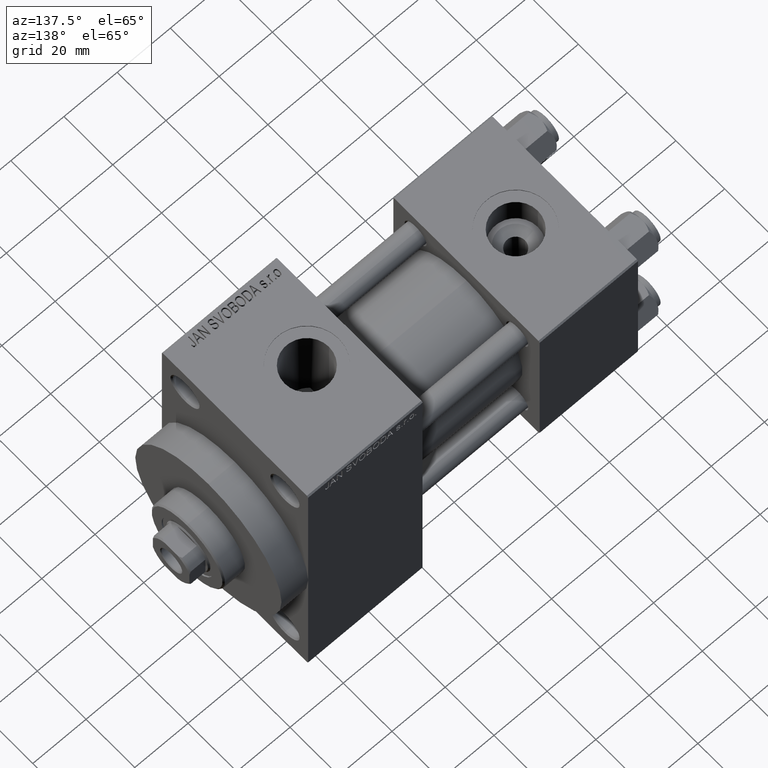
[diagram: clean part render]
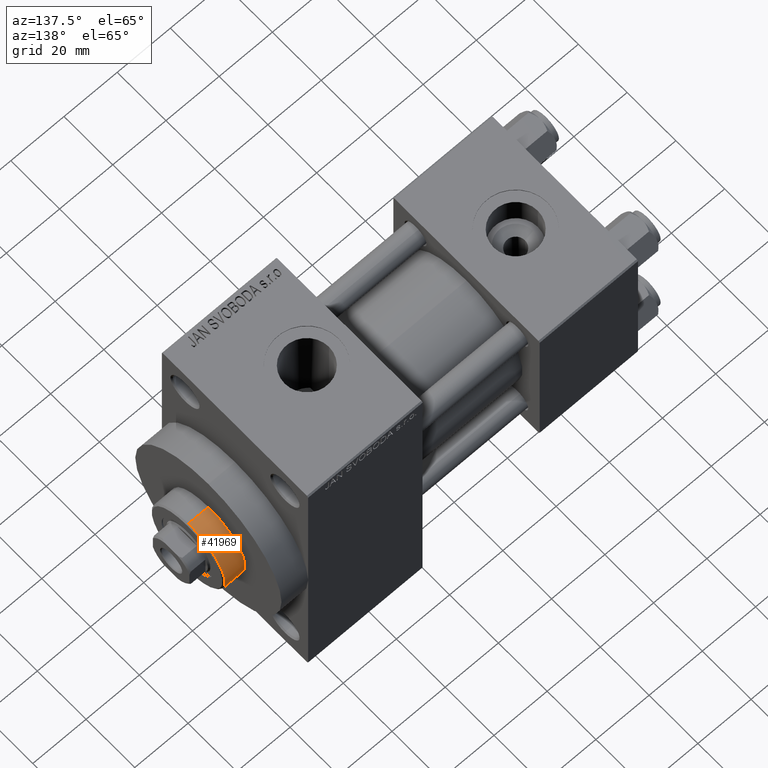
[diagram: same view with one face highlighted and labeled with its STEP entity id]
A machine part, auxiliary view. The second image highlights one B-rep face of the part: STEP entity #41969.
In plain terms, the highlighted cylindrical surface (partial cylindrical patch) has radius 15 mm, axis along (-1, 0, 0).
Its self-contained STEP definition (entity closure, byte-faithful):
#795 = CARTESIAN_POINT ( 'NONE',  ( -15.00000000000000000, 0.000000000000000000, 43.25999999999999801 ) ) ;
#3387 = CARTESIAN_POINT ( 'NONE',  ( 0.000000000000000000, 0.000000000000000000, 43.25999999999999801 ) ) ;
#3852 = DIRECTION ( 'NONE',  ( -0.000000000000000000, -0.000000000000000000, -1.000000000000000000 ) ) ;
#4180 = EDGE_CURVE ( 'NONE', #12778, #32087, #40404, .T. ) ;
#4745 = DIRECTION ( 'NONE',  ( -0.000000000000000000, -0.000000000000000000, -1.000000000000000000 ) ) ;
#8258 = CARTESIAN_POINT ( 'NONE',  ( 15.00000000000000000, 1.836970198721029589E-15, 43.25999999999999801 ) ) ;
#9777 = CARTESIAN_POINT ( 'NONE',  ( -15.00000000000000000, 0.000000000000000000, 50.75999999999998380 ) ) ;
#11254 = CARTESIAN_POINT ( 'NONE',  ( 0.000000000000000000, 0.000000000000000000, 51.25999999999999801 ) ) ;
#11920 = LINE ( 'NONE', #42022, #31693 ) ;
#12778 = VERTEX_POINT ( 'NONE', #9777 ) ;
#13946 = DIRECTION ( 'NONE',  ( 0.000000000000000000, 0.000000000000000000, -1.000000000000000000 ) ) ;
#15612 = AXIS2_PLACEMENT_3D ( 'NONE', #11254, #3852, #18894 ) ;
#16635 = CIRCLE ( 'NONE', #24279, 15.00000000000000000 ) ;
#18894 = DIRECTION ( 'NONE',  ( -1.000000000000000000, 0.000000000000000000, 0.000000000000000000 ) ) ;
#20674 = EDGE_CURVE ( 'NONE', #32087, #27983, #39419, .T. ) ;
#21029 = ORIENTED_EDGE ( 'NONE', *, *, #23640, .T. ) ;
#21379 = DIRECTION ( 'NONE',  ( 1.000000000000000000, 0.000000000000000000, 0.000000000000000000 ) ) ;
#23640 = EDGE_CURVE ( 'NONE', #34494, #12778, #16635, .T. ) ;
#24279 = AXIS2_PLACEMENT_3D ( 'NONE', #46676, #13946, #21379 ) ;
#27983 = VERTEX_POINT ( 'NONE', #8258 ) ;
#30337 = CARTESIAN_POINT ( 'NONE',  ( -15.00000000000000000, 0.000000000000000000, 51.25999999999999801 ) ) ;
#31693 = VECTOR ( 'NONE', #4745, 1000.000000000000000 ) ;
#32087 = VERTEX_POINT ( 'NONE', #795 ) ;
#32900 = ORIENTED_EDGE ( 'NONE', *, *, #20674, .T. ) ;
#33187 = ORIENTED_EDGE ( 'NONE', *, *, #43093, .F. ) ;
#33297 = AXIS2_PLACEMENT_3D ( 'NONE', #3387, #39491, #35419 ) ;
#33596 = ORIENTED_EDGE ( 'NONE', *, *, #4180, .T. ) ;
#33691 = CARTESIAN_POINT ( 'NONE',  ( 15.00000000000000000, 1.836970198721029589E-15, 50.75999999999998380 ) ) ;
#34494 = VERTEX_POINT ( 'NONE', #33691 ) ;
#35419 = DIRECTION ( 'NONE',  ( 1.000000000000000000, 0.000000000000000000, 0.000000000000000000 ) ) ;
#36810 = DIRECTION ( 'NONE',  ( -0.000000000000000000, -0.000000000000000000, -1.000000000000000000 ) ) ;
#37057 = CYLINDRICAL_SURFACE ( 'NONE', #15612, 15.00000000000000000 ) ;
#37291 = EDGE_LOOP ( 'NONE', ( #33187, #21029, #33596, #32900 ) ) ;
#39419 = CIRCLE ( 'NONE', #33297, 15.00000000000000000 ) ;
#39491 = DIRECTION ( 'NONE',  ( 0.000000000000000000, 0.000000000000000000, 1.000000000000000000 ) ) ;
#40404 = LINE ( 'NONE', #30337, #44794 ) ;
#41969 = ADVANCED_FACE ( 'NONE', ( #43520 ), #37057, .T. ) ;
#42022 = CARTESIAN_POINT ( 'NONE',  ( 15.00000000000000000, 1.836970198721029589E-15, 51.25999999999999801 ) ) ;
#43093 = EDGE_CURVE ( 'NONE', #34494, #27983, #11920, .T. ) ;
#43520 = FACE_OUTER_BOUND ( 'NONE', #37291, .T. ) ;
#44794 = VECTOR ( 'NONE', #36810, 1000.000000000000000 ) ;
#46676 = CARTESIAN_POINT ( 'NONE',  ( 0.000000000000000000, 0.000000000000000000, 50.75999999999998380 ) ) ;